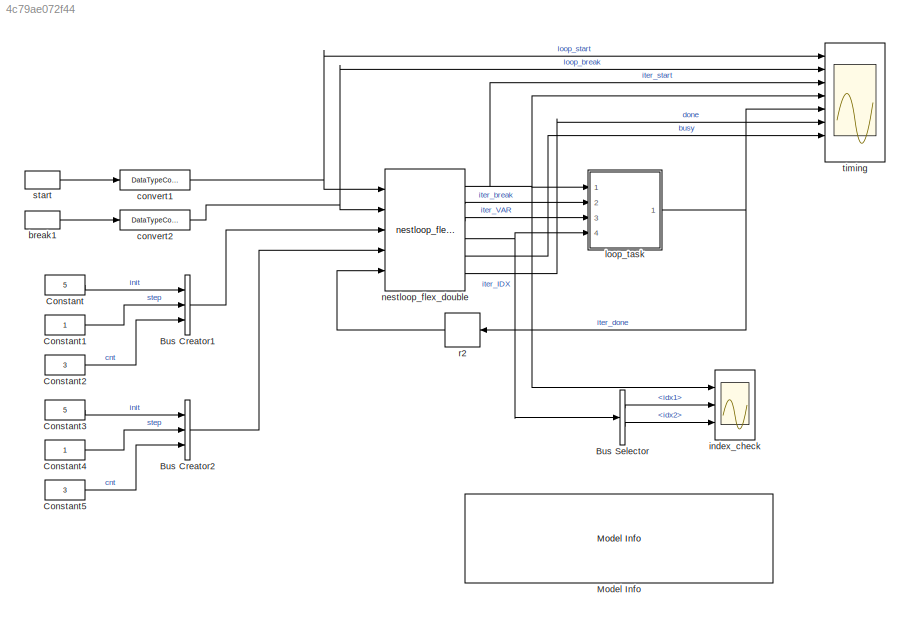
MODEL slx_4c79ae072f44
KIND model
CONFIG AbsTol = auto
CONFIG EnableMultiTasking = on
CONFIG FixedStep = auto
CONFIG MaxStep = auto
CONFIG MinStep = auto
CONFIG RelTol = 1e-3
CONFIG SampleTimeConstraint = Unconstrained
CONFIG Solver = VariableStepAuto
CONFIG SolverName = VariableStepAuto
CONFIG StartTime = 0.0
CONFIG StopTime = 400
BLOCK [BusCreator] Bus Creator1
  DisplayOption = bar
  InheritFromInputs = on
  Inputs = 3
  Ports = [3, 1]
BLOCK [BusCreator] Bus Creator2
  DisplayOption = bar
  InheritFromInputs = on
  Inputs = 3
  Ports = [3, 1]
BLOCK [BusSelector] Bus Selector
  OutputAsBus = off
  OutputSignals = idx1,idx2
  Ports = [1, 2]
BLOCK [Constant] Constant
  OutDataTypeStr = fixdt(1,8,4)
  SampleTime = 1
  Value = 5
BLOCK [Constant] Constant1
  OutDataTypeStr = fixdt(1,8,4)
  SampleTime = 1
BLOCK [Constant] Constant2
  OutDataTypeStr = fixdt(0,3,0)
  SampleTime = 1
  Value = 3
BLOCK [Constant] Constant3
  OutDataTypeStr = fixdt(1,8,4)
  SampleTime = 1
  Value = 5
BLOCK [Constant] Constant4
  OutDataTypeStr = fixdt(1,8,4)
  SampleTime = 1
BLOCK [Constant] Constant5
  OutDataTypeStr = fixdt(0,3,0)
  SampleTime = 1
  Value = 3
BLOCK [Reference] Model Info  REF=simulink/Model-Wide
Utilities/Model Info
  Ports = []
  SourceBlock = simulink/Model-Wide\nUtilities/Model Info
  SourceProductBaseCode = SL
  SourceProductName = Simulink
  SourceType = CMBlock
BLOCK [DiscretePulseGenerator] break1
  Period = 200
  PhaseDelay = 130
  Ports = [0, 1]
BLOCK [DataTypeConversion] convert1
  OutDataTypeStr = boolean
  RndMeth = Floor
  SaturateOnIntegerOverflow = off
BLOCK [DataTypeConversion] convert2
  OutDataTypeStr = boolean
  RndMeth = Floor
  SaturateOnIntegerOverflow = off
BLOCK [Scope] index_check
  Floating = off
  NumInputPorts = 3
  Ports = [3]
  ScopeSpecificationString = Simulink.scopes.TimeScopeBlockCfg('CurrentConfiguration', extmgr.ConfigurationSet(extmgr.Configuration('Core','General UI',true),extmgr.Configuration('Core','Source UI',true),extmgr.Configuration('Sources','WiredSimulink',true),extmgr.Configuration('Visuals','Time Domain',true,'SerializedDisplays',{struct('MinYLimReal','-0.125','MaxYLimReal','1.125','YLabelReal','','MinYLimMag','0.00000','MaxYLimM...<+2692ch>
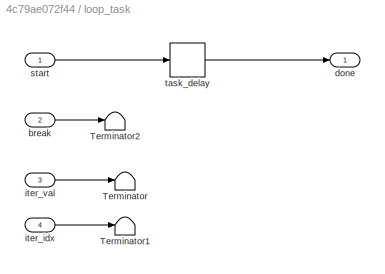
BLOCK [SubSystem] loop_task
  Ports = [4, 1]
  RequestExecContextInheritance = off
BLOCK [Terminator] loop_task/Terminator
BLOCK [Terminator] loop_task/Terminator1
BLOCK [Terminator] loop_task/Terminator2
BLOCK [Inport] loop_task/break
  IconDisplay = Port number
  Port = 2
BLOCK [Outport] loop_task/done
  IconDisplay = Port number
BLOCK [Inport] loop_task/iter_idx
  IconDisplay = Port number
  Port = 4
BLOCK [Inport] loop_task/iter_val
  IconDisplay = Port number
  Port = 3
BLOCK [Inport] loop_task/start
  IconDisplay = Port number
BLOCK [Delay] loop_task/task_delay
  DelayLength = 3
  InitialCondition = 0
  InputPortMap = u0
  Ports = [1, 1]
BLOCK [Reference] nestloop_flex_double  REF=lib_dsphdlcontrol_v1/nestloop_flex_double  (lib defined in slx_169a934beb0a)
  Ports = [5, 6]
  SourceBlock = lib_dsphdlcontrol_v1/nestloop_flex_double
  SourceProductName = DSPHDL Library
  SourceType = Flexible Nested Loop (2-level)
BLOCK [Delay] r2
  DelayLength = 1
  InitialCondition = 0
  InputPortMap = u0
  Ports = [1, 1]
BLOCK [DiscretePulseGenerator] start
  Period = 100
  PhaseDelay = 5
  Ports = [0, 1]
BLOCK [Scope] timing
  Floating = off
  NumInputPorts = 8
  Ports = [8]
  ScopeSpecificationString = Simulink.scopes.TimeScopeBlockCfg('CurrentConfiguration', extmgr.ConfigurationSet(extmgr.Configuration('Core','General UI',true),extmgr.Configuration('Core','Source UI',true),extmgr.Configuration('Sources','WiredSimulink',true,'DataLoggingVariableName','ScopeData1'),extmgr.Configuration('Visuals','Time Domain',true,'SerializedDisplays',{struct('MinYLimReal','-0.125','MaxYLimReal','1.125','YLabelRe...<+6152ch>
LINE Bus Creator1:1 -> nestloop_flex_double:3
LINE Bus Creator2:1 -> nestloop_flex_double:4
LINE Bus Selector:1 -> index_check:2
LINE Bus Selector:2 -> index_check:3
LINE Constant1:1 -> Bus Creator1:2
LINE Constant2:1 -> Bus Creator1:3
LINE Constant3:1 -> Bus Creator2:1
LINE Constant4:1 -> Bus Creator2:2
LINE Constant5:1 -> Bus Creator2:3
LINE Constant:1 -> Bus Creator1:1
LINE break1:1 -> convert2:1
NET convert1:1 -> nestloop_flex_double:1, timing:1
NET convert2:1 -> nestloop_flex_double:2, timing:2
LINE loop_task/break:1 -> loop_task/Terminator2:1
LINE loop_task/iter_idx:1 -> loop_task/Terminator1:1
LINE loop_task/iter_val:1 -> loop_task/Terminator:1
LINE loop_task/start:1 -> loop_task/task_delay:1
LINE loop_task/task_delay:1 -> loop_task/done:1
NET loop_task:1 -> r2:1, timing:5
NET nestloop_flex_double:1 -> index_check:1, loop_task:1, timing:3, timing:4
LINE nestloop_flex_double:2 -> loop_task:2
LINE nestloop_flex_double:3 -> loop_task:3
NET nestloop_flex_double:4 -> Bus Selector:1, loop_task:4
LINE nestloop_flex_double:5 -> timing:7
LINE nestloop_flex_double:6 -> timing:6
LINE r2:1 -> nestloop_flex_double:5
LINE start:1 -> convert1:1
note: NET lines group one-source signal fan-out (src -> all destinations, sorted); 1:1 wires keep LINE
